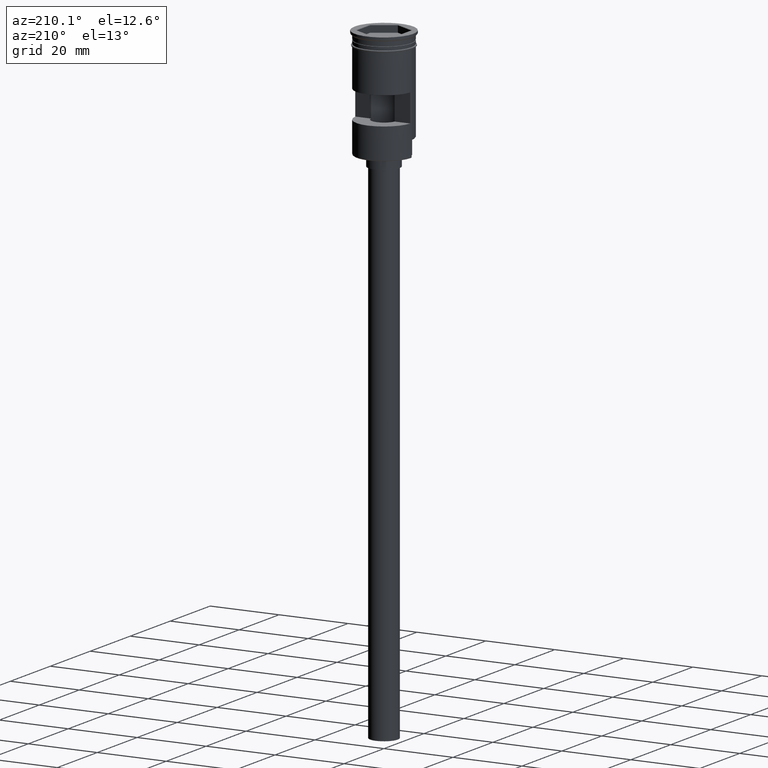
[diagram: clean part render]
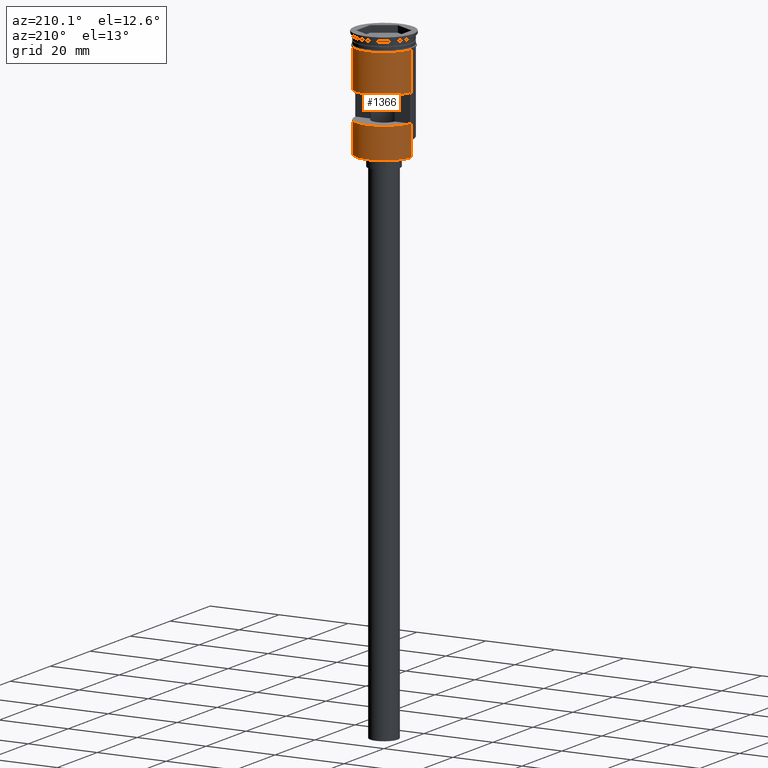
[diagram: same view with one face highlighted and labeled with its STEP entity id]
A machine part, auxiliary view. The second image highlights one B-rep face of the part: STEP entity #1366.
In plain terms, the highlighted cylindrical surface (edge-blend (fillet) strip) has radius 8 mm, axis along (-0, -0, 1).
Its self-contained STEP definition (entity closure, byte-faithful):
#7 = DIRECTION ( 'NONE',  ( 0.000000000000000000, 0.000000000000000000, 1.000000000000000000 ) ) ;
#29 = ORIENTED_EDGE ( 'NONE', *, *, #53, .T. ) ;
#53 = EDGE_CURVE ( 'NONE', #875, #1462, #1563, .T. ) ;
#101 = DIRECTION ( 'NONE',  ( -1.000000000000000000, 0.000000000000000000, 0.000000000000000000 ) ) ;
#103 = VECTOR ( 'NONE', #1174, 1000.000000000000000 ) ;
#130 = LINE ( 'NONE', #896, #775 ) ;
#147 = DIRECTION ( 'NONE',  ( -0.000000000000000000, 2.344220913482172642E-16, -1.000000000000000000 ) ) ;
#169 = CARTESIAN_POINT ( 'NONE',  ( 0.000000000000000000, 0.000000000000000000, -31.79999999999997939 ) ) ;
#171 = VERTEX_POINT ( 'NONE', #1119 ) ;
#180 = AXIS2_PLACEMENT_3D ( 'NONE', #1004, #147, #1242 ) ;
#216 = EDGE_CURVE ( 'NONE', #243, #348, #130, .T. ) ;
#243 = VERTEX_POINT ( 'NONE', #903 ) ;
#245 = ORIENTED_EDGE ( 'NONE', *, *, #992, .F. ) ;
#248 = VERTEX_POINT ( 'NONE', #614 ) ;
#282 = VECTOR ( 'NONE', #1460, 1000.000000000000000 ) ;
#284 = ORIENTED_EDGE ( 'NONE', *, *, #1197, .T. ) ;
#314 = AXIS2_PLACEMENT_3D ( 'NONE', #169, #7, #1271 ) ;
#318 = CARTESIAN_POINT ( 'NONE',  ( 7.999999999999996447, 0.000000000000000000, 0.000000000000000000 ) ) ;
#330 = ORIENTED_EDGE ( 'NONE', *, *, #940, .F. ) ;
#331 = CARTESIAN_POINT ( 'NONE',  ( -7.999999999999996447, 9.797174393178821713E-16, 0.000000000000000000 ) ) ;
#348 = VERTEX_POINT ( 'NONE', #1147 ) ;
#364 = CARTESIAN_POINT ( 'NONE',  ( -7.977468270071648604, 0.6000000000000000888, -23.00000000000000000 ) ) ;
#397 = ORIENTED_EDGE ( 'NONE', *, *, #1124, .F. ) ;
#441 = CIRCLE ( 'NONE', #180, 7.999999999999996447 ) ;
#464 = AXIS2_PLACEMENT_3D ( 'NONE', #718, #1203, #101 ) ;
#495 = VERTEX_POINT ( 'NONE', #1555 ) ;
#507 = VERTEX_POINT ( 'NONE', #364 ) ;
#551 = CARTESIAN_POINT ( 'NONE',  ( -7.977468270071648604, 0.6000000000000000888, -15.00000000000000000 ) ) ;
#588 = EDGE_LOOP ( 'NONE', ( #29, #284, #1202, #397, #890, #816 ) ) ;
#602 = DIRECTION ( 'NONE',  ( -0.000000000000000000, -0.000000000000000000, 1.000000000000000000 ) ) ;
#614 = CARTESIAN_POINT ( 'NONE',  ( 8.000000000000000000, 0.000000000000000000, -3.999999999999997335 ) ) ;
#619 = AXIS2_PLACEMENT_3D ( 'NONE', #1122, #1265, #633 ) ;
#633 = DIRECTION ( 'NONE',  ( 1.000000000000000000, 0.000000000000000000, 0.000000000000000000 ) ) ;
#643 = VECTOR ( 'NONE', #1047, 1000.000000000000000 ) ;
#650 = LINE ( 'NONE', #318, #103 ) ;
#653 = LINE ( 'NONE', #991, #643 ) ;
#683 = EDGE_CURVE ( 'NONE', #495, #922, #653, .T. ) ;
#718 = CARTESIAN_POINT ( 'NONE',  ( 0.000000000000000000, 0.000000000000000000, -23.00000000000000000 ) ) ;
#742 = LINE ( 'NONE', #1447, #1037 ) ;
#775 = VECTOR ( 'NONE', #1377, 1000.000000000000000 ) ;
#816 = ORIENTED_EDGE ( 'NONE', *, *, #1002, .T. ) ;
#847 = FACE_BOUND ( 'NONE', #1251, .T. ) ;
#875 = VERTEX_POINT ( 'NONE', #1481 ) ;
#890 = ORIENTED_EDGE ( 'NONE', *, *, #683, .F. ) ;
#896 = CARTESIAN_POINT ( 'NONE',  ( 7.977468270071648604, 0.6000000000000000888, 0.000000000000000000 ) ) ;
#897 = CARTESIAN_POINT ( 'NONE',  ( -7.999999999999992895, 0.000000000000000000, -27.29999999999996518 ) ) ;
#903 = CARTESIAN_POINT ( 'NONE',  ( 7.977468270071646828, 0.6000000000000000888, -15.00000000000000000 ) ) ;
#922 = VERTEX_POINT ( 'NONE', #1455 ) ;
#934 = VECTOR ( 'NONE', #1304, 1000.000000000000000 ) ;
#940 = EDGE_CURVE ( 'NONE', #507, #1229, #742, .T. ) ;
#960 = CARTESIAN_POINT ( 'NONE',  ( 0.000000000000000000, 0.000000000000000000, 0.000000000000000000 ) ) ;
#991 = CARTESIAN_POINT ( 'NONE',  ( 7.999999999999992895, 9.797174393178817769E-16, -32.00000000000000000 ) ) ;
#992 = EDGE_CURVE ( 'NONE', #348, #507, #1160, .T. ) ;
#1002 = EDGE_CURVE ( 'NONE', #495, #875, #1009, .T. ) ;
#1004 = CARTESIAN_POINT ( 'NONE',  ( 0.000000000000000000, 0.000000000000000000, -15.00000000000000000 ) ) ;
#1009 = CIRCLE ( 'NONE', #314, 7.999999999999996447 ) ;
#1022 = EDGE_CURVE ( 'NONE', #248, #171, #1085, .T. ) ;
#1030 = EDGE_CURVE ( 'NONE', #1229, #243, #441, .T. ) ;
#1037 = VECTOR ( 'NONE', #1220, 1000.000000000000000 ) ;
#1047 = DIRECTION ( 'NONE',  ( -0.000000000000000000, -0.000000000000000000, 1.000000000000000000 ) ) ;
#1078 = FACE_OUTER_BOUND ( 'NONE', #588, .T. ) ;
#1085 = CIRCLE ( 'NONE', #619, 8.000000000000000000 ) ;
#1119 = CARTESIAN_POINT ( 'NONE',  ( -8.000000000000000000, 9.797174393178825657E-16, -3.999999999999997335 ) ) ;
#1122 = CARTESIAN_POINT ( 'NONE',  ( 0.000000000000000000, 0.000000000000000000, -3.999999999999997335 ) ) ;
#1124 = EDGE_CURVE ( 'NONE', #922, #248, #650, .T. ) ;
#1147 = CARTESIAN_POINT ( 'NONE',  ( 7.977468270071646828, 0.6000000000000000888, -23.00000000000000000 ) ) ;
#1160 = CIRCLE ( 'NONE', #464, 7.999999999999996447 ) ;
#1174 = DIRECTION ( 'NONE',  ( -0.000000000000000000, -0.000000000000000000, 1.000000000000000000 ) ) ;
#1186 = AXIS2_PLACEMENT_3D ( 'NONE', #960, #602, #1583 ) ;
#1197 = EDGE_CURVE ( 'NONE', #1462, #171, #1407, .T. ) ;
#1202 = ORIENTED_EDGE ( 'NONE', *, *, #1022, .F. ) ;
#1203 = DIRECTION ( 'NONE',  ( 0.000000000000000000, 0.000000000000000000, 1.000000000000000000 ) ) ;
#1220 = DIRECTION ( 'NONE',  ( -0.000000000000000000, -0.000000000000000000, 1.000000000000000000 ) ) ;
#1229 = VERTEX_POINT ( 'NONE', #551 ) ;
#1242 = DIRECTION ( 'NONE',  ( 0.000000000000000000, -1.000000000000000000, -2.168404344971009854E-16 ) ) ;
#1251 = EDGE_LOOP ( 'NONE', ( #1519, #1496, #330, #245 ) ) ;
#1265 = DIRECTION ( 'NONE',  ( -0.000000000000000000, -0.000000000000000000, 1.000000000000000000 ) ) ;
#1271 = DIRECTION ( 'NONE',  ( -1.000000000000000000, 0.000000000000000000, 0.000000000000000000 ) ) ;
#1304 = DIRECTION ( 'NONE',  ( -0.000000000000000000, -0.000000000000000000, 1.000000000000000000 ) ) ;
#1328 = CYLINDRICAL_SURFACE ( 'NONE', #1186, 7.999999999999996447 ) ;
#1366 = ADVANCED_FACE ( 'NONE', ( #847, #1078 ), #1328, .T. ) ;
#1377 = DIRECTION ( 'NONE',  ( 0.000000000000000000, 0.000000000000000000, -1.000000000000000000 ) ) ;
#1407 = LINE ( 'NONE', #331, #934 ) ;
#1447 = CARTESIAN_POINT ( 'NONE',  ( -7.977468270071648604, 0.6000000000000000888, 0.000000000000000000 ) ) ;
#1455 = CARTESIAN_POINT ( 'NONE',  ( 7.999999999999996447, 9.797174393178821713E-16, -27.29999999999996518 ) ) ;
#1460 = DIRECTION ( 'NONE',  ( -0.000000000000000000, -0.000000000000000000, 1.000000000000000000 ) ) ;
#1462 = VERTEX_POINT ( 'NONE', #897 ) ;
#1481 = CARTESIAN_POINT ( 'NONE',  ( -7.999999999999992895, 0.000000000000000000, -31.79999999999997939 ) ) ;
#1496 = ORIENTED_EDGE ( 'NONE', *, *, #1030, .F. ) ;
#1519 = ORIENTED_EDGE ( 'NONE', *, *, #216, .F. ) ;
#1555 = CARTESIAN_POINT ( 'NONE',  ( 7.999999999999992895, 9.797174393178817769E-16, -31.79999999999997939 ) ) ;
#1563 = LINE ( 'NONE', #1575, #282 ) ;
#1575 = CARTESIAN_POINT ( 'NONE',  ( -7.999999999999992895, 0.000000000000000000, -32.00000000000000000 ) ) ;
#1583 = DIRECTION ( 'NONE',  ( 1.000000000000000000, 0.000000000000000000, 0.000000000000000000 ) ) ;